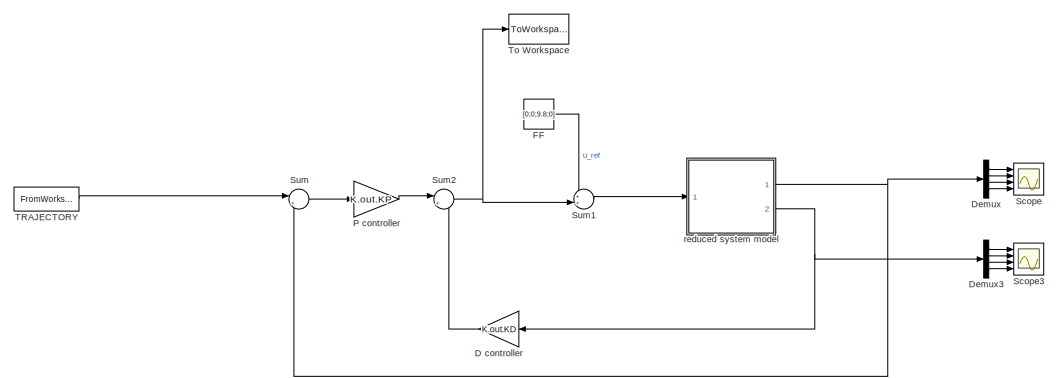
[diagram: root canvas - part 1/2, left side, full height]
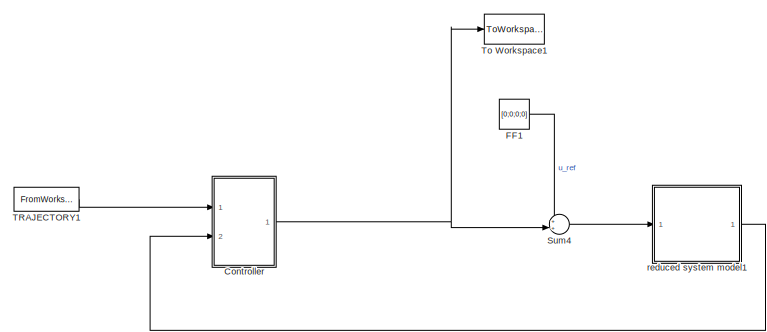
[diagram: root canvas - part 2/2, right side, full height]
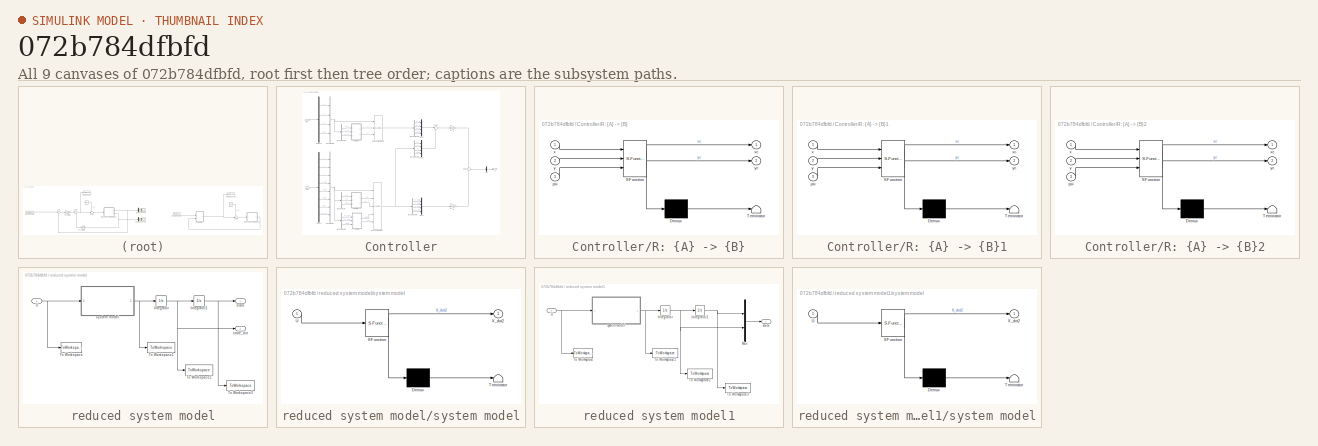
[diagram: thumbnail index - all 9 canvases of the model, root first then tree order]
MODEL slx_072b784dfbfd
KIND model
CONFIG AbsTol = auto
CONFIG FixedStep = auto
CONFIG MaxStep = auto
CONFIG MinStep = auto
CONFIG RelTol = 1e-3
CONFIG SampleTimeConstraint = Unconstrained
CONFIG Solver = ode45
CONFIG SolverMode = Auto
CONFIG SolverName = ode45
CONFIG StartTime = 0.0
CONFIG StopTime = Tfin
WORKSPACE source: MAT-file member
WORKSPACE MCOS: class17 (value not decoded)
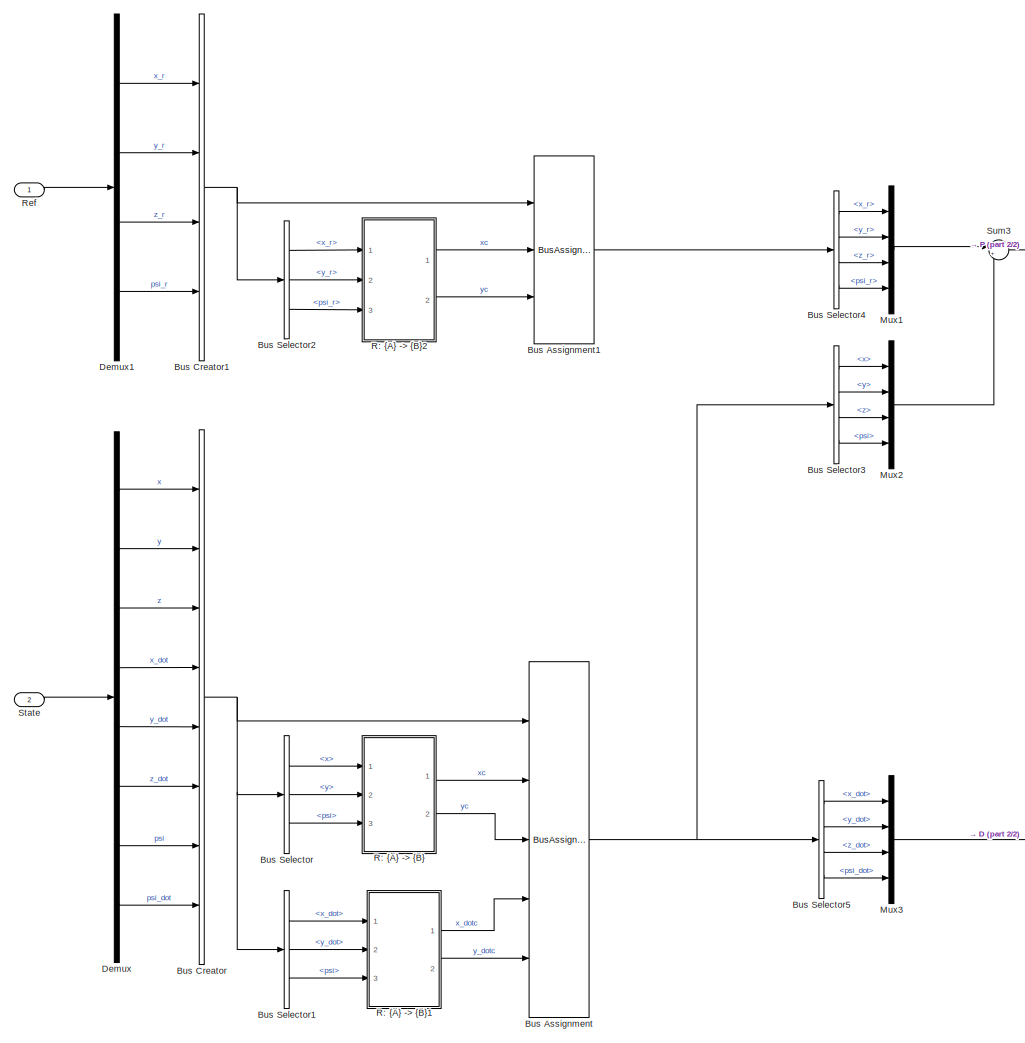
[diagram: Controller - part 1/2, center side, full height]
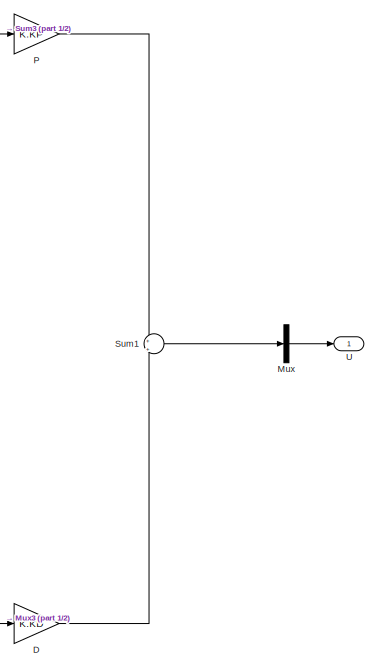
[diagram: Controller - part 2/2, middle right region]
BLOCK [SubSystem] Controller
  Commented = on
  Ports = [2, 1]
  RequestExecContextInheritance = off
BLOCK [BusAssignment] Controller/Bus Assignment
  AssignedSignals = x,y,x_dot,y_dot
  Ports = [5, 1]
BLOCK [BusAssignment] Controller/Bus Assignment1
  AssignedSignals = x_r,y_r
  Ports = [3, 1]
BLOCK [BusCreator] Controller/Bus Creator
  DisplayOption = bar
  Inputs = 8
  Ports = [8, 1]
BLOCK [BusCreator] Controller/Bus Creator1
  DisplayOption = bar
  Ports = [4, 1]
BLOCK [BusSelector] Controller/Bus Selector
  OutputSignals = x,y,psi
  Ports = [1, 3]
BLOCK [BusSelector] Controller/Bus Selector1
  OutputSignals = x_dot,y_dot,psi
  Ports = [1, 3]
BLOCK [BusSelector] Controller/Bus Selector2
  OutputSignals = x_r,y_r,psi_r
  Ports = [1, 3]
BLOCK [BusSelector] Controller/Bus Selector3
  OutputSignals = x,y,z,psi
  Ports = [1, 4]
BLOCK [BusSelector] Controller/Bus Selector4
  OutputSignals = x_r,y_r,z_r,psi_r
  Ports = [1, 4]
BLOCK [BusSelector] Controller/Bus Selector5
  OutputSignals = x_dot,y_dot,z_dot,psi_dot
  Ports = [1, 4]
BLOCK [Gain] Controller/D
  Gain = K.KD
  Multiplication = Matrix(K*u)
  OutDataTypeStr = Inherit: Inherit via internal rule
  ParamDataTypeStr = Inherit: Inherit via internal rule
  SaturateOnIntegerOverflow = off
BLOCK [Demux] Controller/Demux
  DisplayOption = bar
  Outputs = 8
  Ports = [1, 8]
BLOCK [Demux] Controller/Demux1
  DisplayOption = bar
  Ports = [1, 4]
BLOCK [Mux] Controller/Mux
  DisplayOption = bar
  Inputs = 1
  Ports = [1, 1]
BLOCK [Mux] Controller/Mux1
  DisplayOption = bar
  Ports = [4, 1]
BLOCK [Mux] Controller/Mux2
  DisplayOption = bar
  Ports = [4, 1]
BLOCK [Mux] Controller/Mux3
  DisplayOption = bar
  Ports = [4, 1]
BLOCK [Gain] Controller/P
  Gain = K.KP
  Multiplication = Matrix(K*u)
  OutDataTypeStr = Inherit: Inherit via internal rule
  ParamDataTypeStr = Inherit: Inherit via internal rule
  SaturateOnIntegerOverflow = off
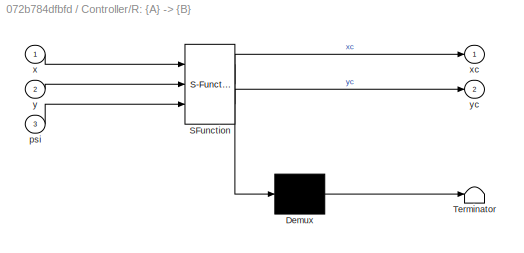
BLOCK [SubSystem] Controller/R: {A} -> {B}
  ErrorFcn = Stateflow.Translate.translate
  PermitHierarchicalResolution = ExplicitOnly
  Ports = [3, 2]
  RequestExecContextInheritance = off
  SFBlockType = MATLAB Function
  TreatAsAtomicUnit = on
BLOCK [Demux] Controller/R: {A} -> {B}/ Demux 
  Outputs = 1
  Ports = [1, 1]
BLOCK [S-Function] Controller/R: {A} -> {B}/ SFunction 
  EnableBusSupport = on
  FunctionName = sf_sfun
  PortCounts = [3 3]
  Ports = [3, 3]
  Tag = Stateflow S-Function model_smpl 6
BLOCK [Terminator] Controller/R: {A} -> {B}/ Terminator 
BLOCK [Inport] Controller/R: {A} -> {B}/psi
  IconDisplay = Port number
  Port = 3
BLOCK [Inport] Controller/R: {A} -> {B}/x
  IconDisplay = Port number
BLOCK [Outport] Controller/R: {A} -> {B}/xc
  IconDisplay = Port number
BLOCK [Inport] Controller/R: {A} -> {B}/y
  IconDisplay = Port number
  Port = 2
BLOCK [Outport] Controller/R: {A} -> {B}/yc
  IconDisplay = Port number
  Port = 2
BLOCK [SubSystem] Controller/R: {A} -> {B}1
  ErrorFcn = Stateflow.Translate.translate
  PermitHierarchicalResolution = ExplicitOnly
  Ports = [3, 2]
  RequestExecContextInheritance = off
  SFBlockType = MATLAB Function
  TreatAsAtomicUnit = on
BLOCK [Demux] Controller/R: {A} -> {B}1/ Demux 
  Outputs = 1
  Ports = [1, 1]
BLOCK [S-Function] Controller/R: {A} -> {B}1/ SFunction 
  EnableBusSupport = on
  FunctionName = sf_sfun
  PortCounts = [3 3]
  Ports = [3, 3]
  Tag = Stateflow S-Function model_smpl 7
BLOCK [Terminator] Controller/R: {A} -> {B}1/ Terminator 
BLOCK [Inport] Controller/R: {A} -> {B}1/psi
  IconDisplay = Port number
  Port = 3
BLOCK [Inport] Controller/R: {A} -> {B}1/x
  IconDisplay = Port number
BLOCK [Outport] Controller/R: {A} -> {B}1/xc
  IconDisplay = Port number
BLOCK [Inport] Controller/R: {A} -> {B}1/y
  IconDisplay = Port number
  Port = 2
BLOCK [Outport] Controller/R: {A} -> {B}1/yc
  IconDisplay = Port number
  Port = 2
BLOCK [SubSystem] Controller/R: {A} -> {B}2
  ErrorFcn = Stateflow.Translate.translate
  PermitHierarchicalResolution = ExplicitOnly
  Ports = [3, 2]
  RequestExecContextInheritance = off
  SFBlockType = MATLAB Function
  TreatAsAtomicUnit = on
BLOCK [Demux] Controller/R: {A} -> {B}2/ Demux 
  Outputs = 1
  Ports = [1, 1]
BLOCK [S-Function] Controller/R: {A} -> {B}2/ SFunction 
  EnableBusSupport = on
  FunctionName = sf_sfun
  PortCounts = [3 3]
  Ports = [3, 3]
  Tag = Stateflow S-Function model_smpl 3
BLOCK [Terminator] Controller/R: {A} -> {B}2/ Terminator 
BLOCK [Inport] Controller/R: {A} -> {B}2/psi
  IconDisplay = Port number
  Port = 3
BLOCK [Inport] Controller/R: {A} -> {B}2/x
  IconDisplay = Port number
BLOCK [Outport] Controller/R: {A} -> {B}2/xc
  IconDisplay = Port number
BLOCK [Inport] Controller/R: {A} -> {B}2/y
  IconDisplay = Port number
  Port = 2
BLOCK [Outport] Controller/R: {A} -> {B}2/yc
  IconDisplay = Port number
  Port = 2
BLOCK [Inport] Controller/Ref
  IconDisplay = Port number
BLOCK [Inport] Controller/State
  IconDisplay = Port number
  Port = 2
BLOCK [Sum] Controller/Sum1
  IconShape = round
  InputSameDT = off
  Inputs = +|+
  OutDataTypeStr = Inherit: Inherit via internal rule
  Ports = [2, 1]
  SaturateOnIntegerOverflow = off
BLOCK [Sum] Controller/Sum3
  IconShape = round
  InputSameDT = off
  Inputs = |+-
  OutDataTypeStr = Inherit: Inherit via internal rule
  Ports = [2, 1]
  SaturateOnIntegerOverflow = off
BLOCK [Outport] Controller/U
  IconDisplay = Port number
BLOCK [Gain] D controller
  Gain = K.out.KD
  Multiplication = Matrix(K*u)
  OutDataTypeStr = Inherit: Inherit via internal rule
  ParamDataTypeStr = Inherit: Inherit via internal rule
  SaturateOnIntegerOverflow = off
BLOCK [Demux] Demux
  DisplayOption = bar
  Ports = [1, 4]
BLOCK [Demux] Demux3
  DisplayOption = bar
  Ports = [1, 4]
BLOCK [Constant] FF
  Value = [0;0;9.8;0]
BLOCK [Constant] FF1
  Commented = on
  Value = [0;0;0;0]
BLOCK [Gain] P controller
  Gain = K.out.KP
  Multiplication = Matrix(K*u)
  OutDataTypeStr = Inherit: Inherit via internal rule
  ParamDataTypeStr = Inherit: Inherit via internal rule
  SaturateOnIntegerOverflow = off
BLOCK [Scope] Scope
  Floating = off
  NumInputPorts = 4
  Ports = [4]
  YMax = 5~5~5~5
  YMin = -5~-5~-5~-5
BLOCK [Scope] Scope3
  Floating = off
  NumInputPorts = 4
  Ports = [4]
  SaveName = ScopeData3
  YMax = 5~5~5~5
  YMin = -5~-5~-5~-5
BLOCK [Sum] Sum
  IconShape = round
  InputSameDT = off
  Inputs = |+-
  OutDataTypeStr = Inherit: Inherit via internal rule
  Ports = [2, 1]
  SaturateOnIntegerOverflow = off
BLOCK [Sum] Sum1
  IconShape = round
  InputSameDT = off
  Inputs = ++|
  OutDataTypeStr = Inherit: Inherit via internal rule
  Ports = [2, 1]
  SaturateOnIntegerOverflow = off
BLOCK [Sum] Sum2
  IconShape = round
  InputSameDT = off
  Inputs = |+-
  OutDataTypeStr = Inherit: Inherit via internal rule
  Ports = [2, 1]
  SaturateOnIntegerOverflow = off
BLOCK [Sum] Sum4
  Commented = on
  IconShape = round
  InputSameDT = off
  Inputs = ++|
  OutDataTypeStr = Inherit: Inherit via internal rule
  Ports = [2, 1]
  SaturateOnIntegerOverflow = off
BLOCK [FromWorkspace] TRAJECTORY
  Interpolate = off
  OutputAfterFinalValue = Setting to zero
  SampleTime = param.hs
  VariableName = traj
  ZeroCross = on
BLOCK [FromWorkspace] TRAJECTORY1
  Commented = on
  Interpolate = off
  OutputAfterFinalValue = Setting to zero
  SampleTime = param.hs
  VariableName = traj
  ZeroCross = on
BLOCK [ToWorkspace] To Workspace
  FixptAsFi = on
  MaxDataPoints = inf
  Ports = [1]
  SampleTime = -1
  Save2DSignal = 3-D array (concatenate along third dimension)
  SaveFormat = Structure With Time
  VariableName = out_u_mac
BLOCK [ToWorkspace] To Workspace1
  Commented = on
  FixptAsFi = on
  MaxDataPoints = inf
  Ports = [1]
  SampleTime = -1
  Save2DSignal = 3-D array (concatenate along third dimension)
  SaveFormat = Structure With Time
  VariableName = out_u_mac
BLOCK [SubSystem] reduced system model
  Ports = [1, 2]
  RequestExecContextInheritance = off
BLOCK [Integrator] reduced system model/Integrator
  InitialCondition = init_state_dot
  Ports = [1, 1]
BLOCK [Integrator] reduced system model/Integrator1
  InitialCondition = init_state
  Ports = [1, 1]
BLOCK [ToWorkspace] reduced system model/To Workspace
  FixptAsFi = on
  MaxDataPoints = inf
  Ports = [1]
  SampleTime = -1
  Save2DSignal = 3-D array (concatenate along third dimension)
  SaveFormat = Structure With Time
  VariableName = out_u
BLOCK [ToWorkspace] reduced system model/To Workspace1
  FixptAsFi = on
  MaxDataPoints = inf
  Ports = [1]
  SampleTime = -1
  Save2DSignal = 3-D array (concatenate along third dimension)
  SaveFormat = Structure With Time
  VariableName = out_state_2dot
BLOCK [ToWorkspace] reduced system model/To Workspace2
  FixptAsFi = on
  MaxDataPoints = inf
  Ports = [1]
  SampleTime = -1
  Save2DSignal = 3-D array (concatenate along third dimension)
  SaveFormat = Structure With Time
  VariableName = out_state_dot
BLOCK [ToWorkspace] reduced system model/To Workspace3
  FixptAsFi = on
  MaxDataPoints = inf
  Ports = [1]
  SampleTime = -1
  Save2DSignal = 3-D array (concatenate along third dimension)
  SaveFormat = Structure With Time
  VariableName = out_state
BLOCK [Inport] reduced system model/U
  IconDisplay = Port number
BLOCK [Outport] reduced system model/state
  IconDisplay = Port number
BLOCK [Outport] reduced system model/state_dot
  IconDisplay = Port number
  Port = 2
BLOCK [SubSystem] reduced system model/system model
  ErrorFcn = Stateflow.Translate.translate
  PermitHierarchicalResolution = ExplicitOnly
  Ports = [1, 1]
  RequestExecContextInheritance = off
  SFBlockType = MATLAB Function
  TreatAsAtomicUnit = on
BLOCK [Demux] reduced system model/system model/ Demux 
  Outputs = 1
  Ports = [1, 1]
BLOCK [S-Function] reduced system model/system model/ SFunction 
  EnableBusSupport = on
  FunctionName = sf_sfun
  PortCounts = [1 2]
  Ports = [1, 2]
  Tag = Stateflow S-Function model_smpl 2
BLOCK [Terminator] reduced system model/system model/ Terminator 
BLOCK [Inport] reduced system model/system model/U
  IconDisplay = Port number
BLOCK [Outport] reduced system model/system model/X_dot2
  IconDisplay = Port number
BLOCK [SubSystem] reduced system model1
  Commented = on
  Ports = [1, 1]
  RequestExecContextInheritance = off
BLOCK [Integrator] reduced system model1/Integrator
  InitialCondition = init_state_dot
  Ports = [1, 1]
BLOCK [Integrator] reduced system model1/Integrator1
  InitialCondition = init_state
  Ports = [1, 1]
BLOCK [Mux] reduced system model1/Mux
  DisplayOption = bar
  Inputs = 2
  Ports = [2, 1]
BLOCK [ToWorkspace] reduced system model1/To Workspace
  FixptAsFi = on
  MaxDataPoints = inf
  Ports = [1]
  SampleTime = -1
  Save2DSignal = 3-D array (concatenate along third dimension)
  SaveFormat = Structure With Time
  VariableName = out_u
BLOCK [ToWorkspace] reduced system model1/To Workspace1
  FixptAsFi = on
  MaxDataPoints = inf
  Ports = [1]
  SampleTime = -1
  Save2DSignal = 3-D array (concatenate along third dimension)
  SaveFormat = Structure With Time
  VariableName = out_state_2dot
BLOCK [ToWorkspace] reduced system model1/To Workspace2
  FixptAsFi = on
  MaxDataPoints = inf
  Ports = [1]
  SampleTime = -1
  Save2DSignal = 3-D array (concatenate along third dimension)
  SaveFormat = Structure With Time
  VariableName = out_state_dot
BLOCK [ToWorkspace] reduced system model1/To Workspace3
  FixptAsFi = on
  MaxDataPoints = inf
  Ports = [1]
  SampleTime = -1
  Save2DSignal = 3-D array (concatenate along third dimension)
  SaveFormat = Structure With Time
  VariableName = out_state
BLOCK [Inport] reduced system model1/U
  IconDisplay = Port number
BLOCK [Outport] reduced system model1/state
  IconDisplay = Port number
BLOCK [SubSystem] reduced system model1/system model
  ErrorFcn = Stateflow.Translate.translate
  PermitHierarchicalResolution = ExplicitOnly
  Ports = [1, 1]
  RequestExecContextInheritance = off
  SFBlockType = MATLAB Function
  TreatAsAtomicUnit = on
BLOCK [Demux] reduced system model1/system model/ Demux 
  Outputs = 1
  Ports = [1, 1]
BLOCK [S-Function] reduced system model1/system model/ SFunction 
  EnableBusSupport = on
  FunctionName = sf_sfun
  PortCounts = [1 2]
  Ports = [1, 2]
  Tag = Stateflow S-Function model_smpl 1
BLOCK [Terminator] reduced system model1/system model/ Terminator 
BLOCK [Inport] reduced system model1/system model/U
  IconDisplay = Port number
BLOCK [Outport] reduced system model1/system model/X_dot2
  IconDisplay = Port number
LINE Controller/Bus Assignment1:1 -> Controller/Bus Selector4:1
NET Controller/Bus Assignment:1 -> Controller/Bus Selector3:1, Controller/Bus Selector5:1
NET Controller/Bus Creator1:1 -> Controller/Bus Assignment1:1, Controller/Bus Selector2:1
NET Controller/Bus Creator:1 -> Controller/Bus Assignment:1, Controller/Bus Selector1:1, Controller/Bus Selector:1
LINE Controller/Bus Selector1:1 -> Controller/R: {A} -> {B}1:1
LINE Controller/Bus Selector1:2 -> Controller/R: {A} -> {B}1:2
LINE Controller/Bus Selector1:3 -> Controller/R: {A} -> {B}1:3
LINE Controller/Bus Selector2:1 -> Controller/R: {A} -> {B}2:1
LINE Controller/Bus Selector2:2 -> Controller/R: {A} -> {B}2:2
LINE Controller/Bus Selector2:3 -> Controller/R: {A} -> {B}2:3
LINE Controller/Bus Selector3:1 -> Controller/Mux2:1
LINE Controller/Bus Selector3:2 -> Controller/Mux2:2
LINE Controller/Bus Selector3:3 -> Controller/Mux2:3
LINE Controller/Bus Selector3:4 -> Controller/Mux2:4
LINE Controller/Bus Selector4:1 -> Controller/Mux1:1
LINE Controller/Bus Selector4:2 -> Controller/Mux1:2
LINE Controller/Bus Selector4:3 -> Controller/Mux1:3
LINE Controller/Bus Selector4:4 -> Controller/Mux1:4
LINE Controller/Bus Selector5:1 -> Controller/Mux3:1
LINE Controller/Bus Selector5:2 -> Controller/Mux3:2
LINE Controller/Bus Selector5:3 -> Controller/Mux3:3
LINE Controller/Bus Selector5:4 -> Controller/Mux3:4
LINE Controller/Bus Selector:1 -> Controller/R: {A} -> {B}:1
LINE Controller/Bus Selector:2 -> Controller/R: {A} -> {B}:2
LINE Controller/Bus Selector:3 -> Controller/R: {A} -> {B}:3
LINE Controller/D:1 -> Controller/Sum1:2
LINE Controller/Demux1:1 -> Controller/Bus Creator1:1
LINE Controller/Demux1:2 -> Controller/Bus Creator1:2
LINE Controller/Demux1:3 -> Controller/Bus Creator1:3
LINE Controller/Demux1:4 -> Controller/Bus Creator1:4
LINE Controller/Demux:1 -> Controller/Bus Creator:1
LINE Controller/Demux:2 -> Controller/Bus Creator:2
LINE Controller/Demux:3 -> Controller/Bus Creator:3
LINE Controller/Demux:4 -> Controller/Bus Creator:4
LINE Controller/Demux:5 -> Controller/Bus Creator:5
LINE Controller/Demux:6 -> Controller/Bus Creator:6
LINE Controller/Demux:7 -> Controller/Bus Creator:7
LINE Controller/Demux:8 -> Controller/Bus Creator:8
LINE Controller/Mux1:1 -> Controller/Sum3:1
LINE Controller/Mux2:1 -> Controller/Sum3:2
LINE Controller/Mux3:1 -> Controller/D:1
LINE Controller/Mux:1 -> Controller/U:1
LINE Controller/P:1 -> Controller/Sum1:1
LINE Controller/R: {A} -> {B}1:1 -> Controller/Bus Assignment:4
LINE Controller/R: {A} -> {B}1:2 -> Controller/Bus Assignment:5
LINE Controller/R: {A} -> {B}2:1 -> Controller/Bus Assignment1:2
LINE Controller/R: {A} -> {B}2:2 -> Controller/Bus Assignment1:3
LINE Controller/R: {A} -> {B}:1 -> Controller/Bus Assignment:2
LINE Controller/R: {A} -> {B}:2 -> Controller/Bus Assignment:3
LINE Controller/Ref:1 -> Controller/Demux1:1
LINE Controller/State:1 -> Controller/Demux:1
LINE Controller/Sum1:1 -> Controller/Mux:1
LINE Controller/Sum3:1 -> Controller/P:1
NET Controller:1 -> Sum4:2, To Workspace1:1
LINE D controller:1 -> Sum2:2
LINE Demux3:1 -> Scope3:1
LINE Demux3:2 -> Scope3:2
LINE Demux3:3 -> Scope3:3
LINE Demux3:4 -> Scope3:4
LINE Demux:1 -> Scope:1
LINE Demux:2 -> Scope:2
LINE Demux:3 -> Scope:3
LINE Demux:4 -> Scope:4
LINE FF1:1 -> Sum4:1
LINE FF:1 -> Sum1:1
LINE P controller:1 -> Sum2:1
LINE Sum1:1 -> reduced system model:1
NET Sum2:1 -> Sum1:2, To Workspace:1
LINE Sum4:1 -> reduced system model1:1
LINE Sum:1 -> P controller:1
LINE TRAJECTORY1:1 -> Controller:1
LINE TRAJECTORY:1 -> Sum:1
NET reduced system model/Integrator1:1 -> reduced system model/To Workspace3:1, reduced system model/state:1
NET reduced system model/Integrator:1 -> reduced system model/Integrator1:1, reduced system model/To Workspace2:1, reduced system model/state_dot:1
NET reduced system model/U:1 -> reduced system model/To Workspace:1, reduced system model/system model:1
NET reduced system model/system model:1 -> reduced system model/Integrator:1, reduced system model/To Workspace1:1
NET reduced system model1/Integrator1:1 -> reduced system model1/Mux:1, reduced system model1/To Workspace3:1
NET reduced system model1/Integrator:1 -> reduced system model1/Integrator1:1, reduced system model1/Mux:2, reduced system model1/To Workspace2:1
LINE reduced system model1/Mux:1 -> reduced system model1/state:1
NET reduced system model1/U:1 -> reduced system model1/To Workspace:1, reduced system model1/system model:1
NET reduced system model1/system model:1 -> reduced system model1/Integrator:1, reduced system model1/To Workspace1:1
LINE reduced system model1:1 -> Controller:2
NET reduced system model:1 -> Demux:1, Sum:2
NET reduced system model:2 -> D controller:1, Demux3:1
note: NET lines group one-source signal fan-out (src -> all destinations, sorted); 1:1 wires keep LINE
CHART reduced system model1/system model states=1 transitions=1
  STATE_LABEL 'eML_blk_kernel()'
  STATE_LABEL "SCRIPT:\nfunction X_dot2 = system(U)\n% Simplified model of quadcopter\n    % Inputs: F, Tpsi\n    %   ·F: vector of forces in base{A}. projection of Thrust {B} in each\n    %     direction of {A}\n    %       units: [N]\n    %   ·Tpsi: Torque applied around Euler's angle PSI\n    %       units: [Nm]   \n    %\n    % Outputs: X_dot2: second derivative of the state\n    %       units: ['state'/t^2]\n    %\n    ...<+240ch>"
CHART reduced system model/system model states=1 transitions=1
  STATE_LABEL 'eML_blk_kernel()'
  STATE_LABEL "SCRIPT:\nfunction X_dot2 = syst(U)\n% Simplified model of quadcopter\n    % Inputs: F, Tpsi\n    %   ·F: vector of forces in base{A}. projection of Thrust {B} in each\n    %     direction of {A}\n    %       units: [N]\n    %   ·Tpsi: Torque applied around Euler's angle PSI\n    %       units: [Nm]   \n    %\n    % Outputs: X_dot2: second derivative of the state\n    %       units: ['state'/t^2]\n    %\n    % ...<+245ch>"
CHART Controller/R: {A} -> {B}2 states=1 transitions=1
  STATE_LABEL 'eML_blk_kernel()'
  STATE_LABEL "SCRIPT:\nfunction [xc, yc] = fcn(x, y, psi)\n%#codegen\n% Change in cordenates from fixed frame {A} to body frame {B} of position\n%  state coordenates\n% · apply rotation matrix over phi (vertical) to [x] and [y]\n% · the references are given in fix frame {A}, input [u] is computed in\n%   body frame {B}\n\nR = [ cos(psi) sin(psi)\n     -sin(psi) cos(psi)];\na = R * [x, y]';\nxc = a(1);\nyc = a(2);"
CHART Controller/R: {A} -> {B} states=1 transitions=1
  STATE_LABEL 'eML_blk_kernel()'
  STATE_LABEL "SCRIPT:\nfunction [xc, yc] = fcn(x, y, psi)\n%#codegen\n% Change in cordenates from fixed frame {A} to body frame {B} of position\n%  state coordenates\n% · apply rotation matrix over phi (vertical) to [x] and [y]\n% · the references are given in fix frame {A}, input [u] is computed in\n%   body frame {B}\n\nR = [ cos(psi) sin(psi)\n     -sin(psi) cos(psi)];\na = R * [x, y]';\nxc = a(1);\nyc = a(2);"
CHART Controller/R: {A} -> {B}1 states=1 transitions=1
  STATE_LABEL 'eML_blk_kernel()'
  STATE_LABEL 'SCRIPT:\nfunction [xc, yc] = fcn(x, y, psi)\n%#codegen\n% Change in cordenates from fixed frame {A} to body frame {B} of position\n%  state coordenates\n% · apply rotation matrix over phi (vertical) to [x] and [y]\n% · the references are given in fix frame {A}, input [u] is computed in\n%   body frame {B}\n\nR = [ cos(psi) sin(psi)\n     -sin(psi) cos(psi)];\na = R * [x; y];\nxc = a(1); \nyc = a(2);'
